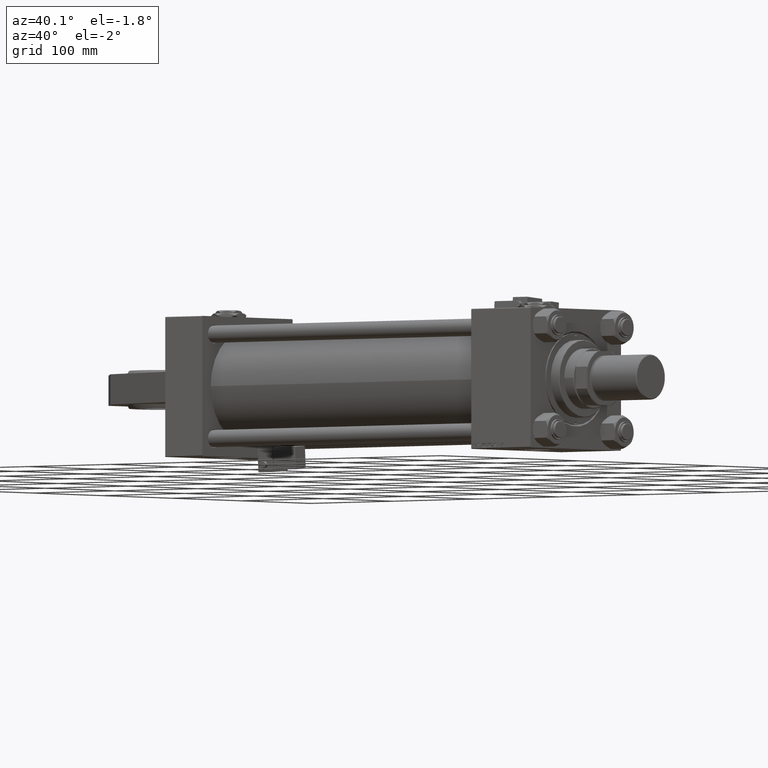
[diagram: clean part render]
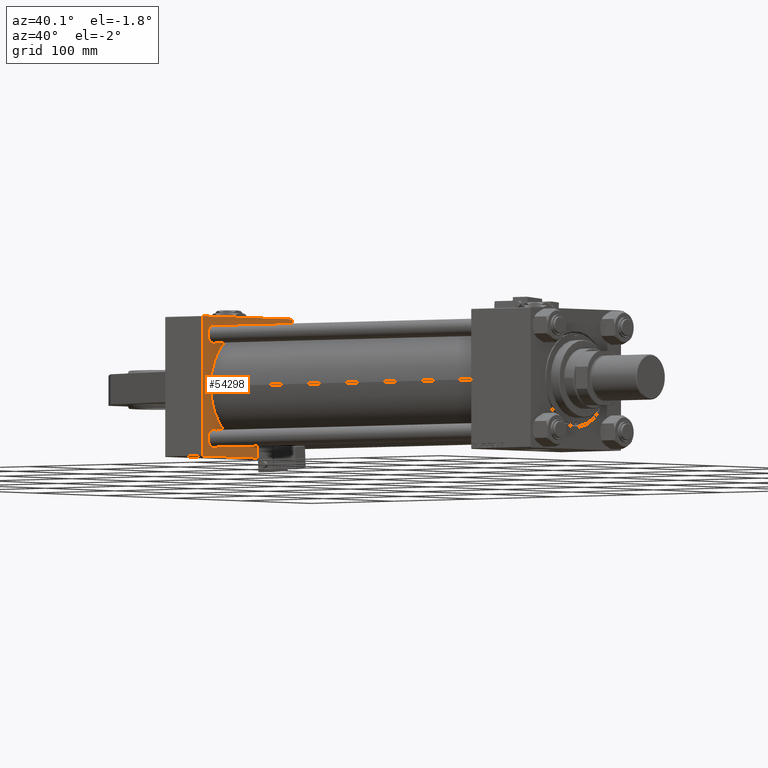
[diagram: same view with one face highlighted and labeled with its STEP entity id]
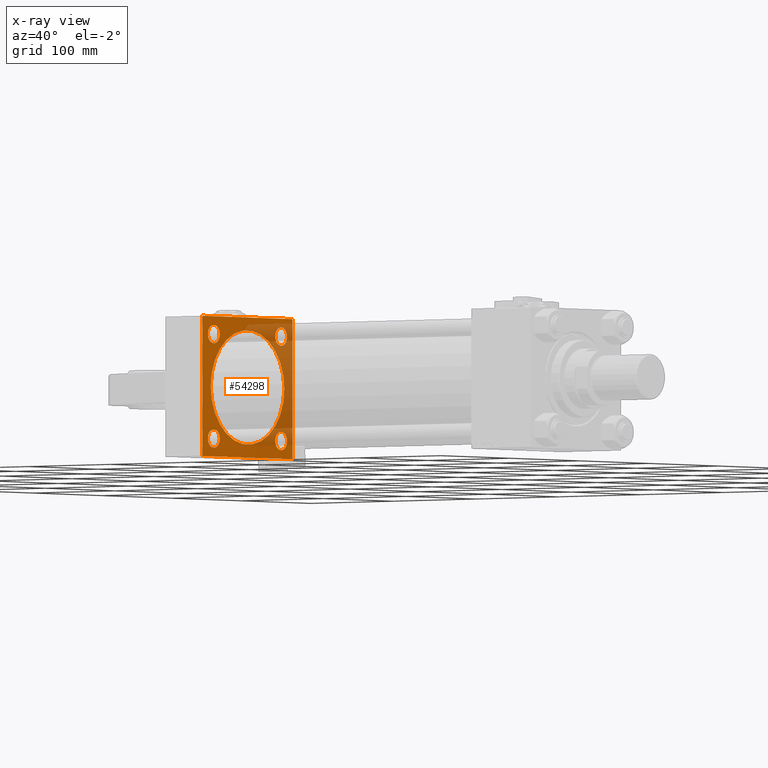
[diagram: x-ray of the same camera — body ghosted, the highlighted face saturated]
A machine part, auxiliary view. The second image highlights one B-rep face of the part: STEP entity #54298.
The next image is the same camera in x-ray: the body ghosted, the highlighted face saturated — about 35% of this face is hidden behind the body in this view.
In plain terms, the highlighted planar face has unit normal (-1, 0, 0).
Its self-contained STEP definition (entity closure, byte-faithful):
#99 = VERTEX_POINT ( 'NONE', #22239 ) ;
#231 = DIRECTION ( 'NONE',  ( 0.000000000000000000, 0.000000000000000000, 1.000000000000000000 ) ) ;
#250 = VERTEX_POINT ( 'NONE', #48802 ) ;
#387 = CARTESIAN_POINT ( 'NONE',  ( 45.00000000000000000, -48.44999999999999574, 48.45000000000003126 ) ) ;
#575 = CARTESIAN_POINT ( 'NONE',  ( 45.00000000000000000, 64.49999999999997158, -64.99999999999998579 ) ) ;
#906 = CARTESIAN_POINT ( 'NONE',  ( 45.00000000000000000, -48.44999999999999574, 48.45000000000003126 ) ) ;
#1478 = LINE ( 'NONE', #18565, #18039 ) ;
#2590 = EDGE_CURVE ( 'NONE', #47584, #99, #52327, .T. ) ;
#3079 = CARTESIAN_POINT ( 'NONE',  ( 45.00000000000000000, 48.45000000000000995, -48.45000000000001705 ) ) ;
#3231 = ORIENTED_EDGE ( 'NONE', *, *, #37773, .T. ) ;
#3272 = DIRECTION ( 'NONE',  ( 0.000000000000000000, 0.000000000000000000, -1.000000000000000000 ) ) ;
#3375 = DIRECTION ( 'NONE',  ( 0.000000000000000000, 0.000000000000000000, 1.000000000000000000 ) ) ;
#3667 = VERTEX_POINT ( 'NONE', #28846 ) ;
#3714 = DIRECTION ( 'NONE',  ( -0.000000000000000000, 0.000000000000000000, 1.000000000000000000 ) ) ;
#4443 = EDGE_CURVE ( 'NONE', #21731, #38256, #54909, .T. ) ;
#4561 = ORIENTED_EDGE ( 'NONE', *, *, #4443, .T. ) ;
#4584 = CIRCLE ( 'NONE', #51061, 53.00000000000000711 ) ;
#4760 = VERTEX_POINT ( 'NONE', #29618 ) ;
#5028 = ORIENTED_EDGE ( 'NONE', *, *, #16307, .T. ) ;
#5095 = VERTEX_POINT ( 'NONE', #25248 ) ;
#5112 = ORIENTED_EDGE ( 'NONE', *, *, #11212, .T. ) ;
#6523 = ORIENTED_EDGE ( 'NONE', *, *, #2590, .F. ) ;
#6583 = VECTOR ( 'NONE', #9778, 1000.000000000000000 ) ;
#6794 = DIRECTION ( 'NONE',  ( 0.000000000000000000, -1.000000000000000000, -1.067522139062650425E-16 ) ) ;
#7582 = CARTESIAN_POINT ( 'NONE',  ( 44.99999999999998579, -2.602085213965210642E-15, 0.000000000000000000 ) ) ;
#7767 = DIRECTION ( 'NONE',  ( -1.000000000000000000, 0.000000000000000000, -0.000000000000000000 ) ) ;
#8153 = DIRECTION ( 'NONE',  ( 0.000000000000000000, 0.000000000000000000, -1.000000000000000000 ) ) ;
#9263 = CARTESIAN_POINT ( 'NONE',  ( 45.00000000000000000, 48.45000000000000995, -39.95000000000003126 ) ) ;
#9660 = AXIS2_PLACEMENT_3D ( 'NONE', #14786, #53129, #39400 ) ;
#9778 = DIRECTION ( 'NONE',  ( 0.000000000000000000, -1.000000000000000000, -1.067522139062650425E-16 ) ) ;
#9793 = AXIS2_PLACEMENT_3D ( 'NONE', #387, #51344, #50513 ) ;
#9977 = CARTESIAN_POINT ( 'NONE',  ( 45.00000000000000000, 48.45000000000000995, 48.45000000000001705 ) ) ;
#10014 = ORIENTED_EDGE ( 'NONE', *, *, #36157, .T. ) ;
#11212 = EDGE_CURVE ( 'NONE', #38256, #99, #39925, .T. ) ;
#11596 = DIRECTION ( 'NONE',  ( -0.000000000000000000, 0.7071067811865474617, 0.7071067811865474617 ) ) ;
#11908 = CIRCLE ( 'NONE', #32406, 8.499999999999980460 ) ;
#12681 = FACE_BOUND ( 'NONE', #48282, .T. ) ;
#12694 = DIRECTION ( 'NONE',  ( -1.000000000000000000, 0.000000000000000000, -0.000000000000000000 ) ) ;
#12912 = EDGE_CURVE ( 'NONE', #3667, #19369, #19492, .T. ) ;
#12954 = FACE_BOUND ( 'NONE', #53306, .T. ) ;
#13331 = ORIENTED_EDGE ( 'NONE', *, *, #46310, .T. ) ;
#13635 = ORIENTED_EDGE ( 'NONE', *, *, #41515, .T. ) ;
#13937 = ORIENTED_EDGE ( 'NONE', *, *, #14120, .T. ) ;
#13982 = CARTESIAN_POINT ( 'NONE',  ( 45.00000000000000000, 65.00000000000000000, -64.99999999999998579 ) ) ;
#14096 = EDGE_LOOP ( 'NONE', ( #22058, #49711 ) ) ;
#14120 = EDGE_CURVE ( 'NONE', #5095, #21657, #52006, .T. ) ;
#14575 = CIRCLE ( 'NONE', #47646, 8.499999999999980460 ) ;
#14786 = CARTESIAN_POINT ( 'NONE',  ( 45.00000000000000000, -48.44999999999999574, -48.45000000000003126 ) ) ;
#15367 = CIRCLE ( 'NONE', #37694, 53.00000000000000711 ) ;
#15588 = CARTESIAN_POINT ( 'NONE',  ( 44.99999999999998579, 3.888542821515762466E-15, -53.00000000000000711 ) ) ;
#15730 = DIRECTION ( 'NONE',  ( 1.000000000000000000, -0.000000000000000000, 0.000000000000000000 ) ) ;
#15772 = VERTEX_POINT ( 'NONE', #47239 ) ;
#16307 = EDGE_CURVE ( 'NONE', #47584, #250, #54141, .T. ) ;
#16320 = FACE_BOUND ( 'NONE', #23985, .T. ) ;
#16575 = EDGE_CURVE ( 'NONE', #40061, #34905, #14575, .T. ) ;
#17284 = VECTOR ( 'NONE', #11596, 1000.000000000000114 ) ;
#17376 = LINE ( 'NONE', #21034, #20926 ) ;
#17702 = AXIS2_PLACEMENT_3D ( 'NONE', #29308, #7767, #21473 ) ;
#17791 = AXIS2_PLACEMENT_3D ( 'NONE', #43319, #47527, #231 ) ;
#18002 = ORIENTED_EDGE ( 'NONE', *, *, #22023, .T. ) ;
#18039 = VECTOR ( 'NONE', #6794, 1000.000000000000000 ) ;
#18098 = DIRECTION ( 'NONE',  ( -1.000000000000000000, 0.000000000000000000, -0.000000000000000000 ) ) ;
#18462 = ORIENTED_EDGE ( 'NONE', *, *, #50598, .T. ) ;
#18565 = CARTESIAN_POINT ( 'NONE',  ( 45.00000000000000000, 65.00000000000000000, 65.00000000000001421 ) ) ;
#19369 = VERTEX_POINT ( 'NONE', #34639 ) ;
#19492 = CIRCLE ( 'NONE', #9660, 8.499999999999980460 ) ;
#20169 = DIRECTION ( 'NONE',  ( -1.000000000000000000, 0.000000000000000000, -0.000000000000000000 ) ) ;
#20259 = VERTEX_POINT ( 'NONE', #40905 ) ;
#20536 = CARTESIAN_POINT ( 'NONE',  ( 45.00000000000000000, 65.00000000000000000, -64.49999999999995737 ) ) ;
#20715 = DIRECTION ( 'NONE',  ( -1.000000000000000000, 0.000000000000000000, -0.000000000000000000 ) ) ;
#20777 = VECTOR ( 'NONE', #3272, 1000.000000000000000 ) ;
#20926 = VECTOR ( 'NONE', #28379, 1000.000000000000000 ) ;
#21034 = CARTESIAN_POINT ( 'NONE',  ( 45.00000000000000000, -65.00000000000000000, 64.50000000000000000 ) ) ;
#21271 = CARTESIAN_POINT ( 'NONE',  ( 45.00000000000000000, 48.45000000000000995, 39.95000000000003126 ) ) ;
#21473 = DIRECTION ( 'NONE',  ( 0.000000000000000000, 0.000000000000000000, 1.000000000000000000 ) ) ;
#21551 = CARTESIAN_POINT ( 'NONE',  ( 45.00000000000000000, 48.45000000000000995, -48.45000000000001705 ) ) ;
#21641 = CARTESIAN_POINT ( 'NONE',  ( 45.00000000000000000, 64.49999999999997158, 65.00000000000001421 ) ) ;
#21657 = VERTEX_POINT ( 'NONE', #21271 ) ;
#21731 = VERTEX_POINT ( 'NONE', #38592 ) ;
#21918 = DIRECTION ( 'NONE',  ( 0.000000000000000000, 0.000000000000000000, 1.000000000000000000 ) ) ;
#22023 = EDGE_CURVE ( 'NONE', #31484, #21731, #17376, .T. ) ;
#22051 = DIRECTION ( 'NONE',  ( 0.000000000000000000, 0.7071067811865279218, -0.7071067811865671127 ) ) ;
#22058 = ORIENTED_EDGE ( 'NONE', *, *, #51569, .F. ) ;
#22239 = CARTESIAN_POINT ( 'NONE',  ( 45.00000000000000000, -64.49999999999994316, -65.00000000000000000 ) ) ;
#22293 = CARTESIAN_POINT ( 'NONE',  ( 45.00000000000000000, -65.00000000000000000, -64.49999999999991473 ) ) ;
#23879 = VECTOR ( 'NONE', #22051, 1000.000000000000000 ) ;
#23985 = EDGE_LOOP ( 'NONE', ( #10014, #13937 ) ) ;
#24031 = ORIENTED_EDGE ( 'NONE', *, *, #52797, .F. ) ;
#24512 = VECTOR ( 'NONE', #8153, 1000.000000000000000 ) ;
#24854 = CIRCLE ( 'NONE', #17702, 8.499999999999980460 ) ;
#24964 = CARTESIAN_POINT ( 'NONE',  ( 44.99999999999998579, -2.602085213965210642E-15, 0.000000000000000000 ) ) ;
#25248 = CARTESIAN_POINT ( 'NONE',  ( 45.00000000000000000, 48.45000000000000995, 56.94999999999999574 ) ) ;
#25561 = FACE_BOUND ( 'NONE', #14096, .T. ) ;
#28379 = DIRECTION ( 'NONE',  ( -0.000000000000000000, -0.7071067811865672237, -0.7071067811865279218 ) ) ;
#28846 = CARTESIAN_POINT ( 'NONE',  ( 45.00000000000000000, -48.44999999999999574, -39.95000000000004547 ) ) ;
#29308 = CARTESIAN_POINT ( 'NONE',  ( 45.00000000000000000, -48.44999999999999574, -48.45000000000003126 ) ) ;
#29436 = DIRECTION ( 'NONE',  ( 0.000000000000000000, 0.000000000000000000, 1.000000000000000000 ) ) ;
#29470 = PLANE ( 'NONE',  #32399 ) ;
#29618 = CARTESIAN_POINT ( 'NONE',  ( 44.99999999999998579, -2.602085213965210642E-15, 53.00000000000000711 ) ) ;
#29660 = AXIS2_PLACEMENT_3D ( 'NONE', #9977, #18098, #52261 ) ;
#29736 = FACE_OUTER_BOUND ( 'NONE', #39636, .T. ) ;
#31484 = VERTEX_POINT ( 'NONE', #53863 ) ;
#32183 = DIRECTION ( 'NONE',  ( 0.000000000000000000, 0.000000000000000000, 1.000000000000000000 ) ) ;
#32399 = AXIS2_PLACEMENT_3D ( 'NONE', #42331, #46814, #3714 ) ;
#32406 = AXIS2_PLACEMENT_3D ( 'NONE', #906, #12694, #21918 ) ;
#32654 = LINE ( 'NONE', #33199, #20777 ) ;
#33199 = CARTESIAN_POINT ( 'NONE',  ( 45.00000000000000000, 65.00000000000000000, 65.00000000000001421 ) ) ;
#33541 = VERTEX_POINT ( 'NONE', #21641 ) ;
#33929 = FACE_BOUND ( 'NONE', #43548, .T. ) ;
#34639 = CARTESIAN_POINT ( 'NONE',  ( 45.00000000000000000, -48.44999999999999574, -56.95000000000000995 ) ) ;
#34905 = VERTEX_POINT ( 'NONE', #9263 ) ;
#35426 = ORIENTED_EDGE ( 'NONE', *, *, #52310, .T. ) ;
#35448 = CARTESIAN_POINT ( 'NONE',  ( 45.00000000000000000, -64.49999999999994316, -65.00000000000000000 ) ) ;
#35625 = ORIENTED_EDGE ( 'NONE', *, *, #40053, .T. ) ;
#36157 = EDGE_CURVE ( 'NONE', #21657, #5095, #50876, .T. ) ;
#36508 = VERTEX_POINT ( 'NONE', #15588 ) ;
#37694 = AXIS2_PLACEMENT_3D ( 'NONE', #24964, #15730, #29436 ) ;
#37773 = EDGE_CURVE ( 'NONE', #54531, #15772, #55406, .T. ) ;
#38256 = VERTEX_POINT ( 'NONE', #22293 ) ;
#38592 = CARTESIAN_POINT ( 'NONE',  ( 45.00000000000000000, -65.00000000000000000, 64.50000000000000000 ) ) ;
#39400 = DIRECTION ( 'NONE',  ( 0.000000000000000000, 0.000000000000000000, 1.000000000000000000 ) ) ;
#39636 = EDGE_LOOP ( 'NONE', ( #6523, #5028, #24031, #13635, #35426, #18002, #4561, #5112 ) ) ;
#39925 = LINE ( 'NONE', #35448, #23879 ) ;
#40053 = EDGE_CURVE ( 'NONE', #19369, #3667, #24854, .T. ) ;
#40061 = VERTEX_POINT ( 'NONE', #41607 ) ;
#40248 = AXIS2_PLACEMENT_3D ( 'NONE', #3079, #20169, #32183 ) ;
#40870 = CARTESIAN_POINT ( 'NONE',  ( 45.00000000000000000, -48.44999999999999574, 39.95000000000004547 ) ) ;
#40905 = CARTESIAN_POINT ( 'NONE',  ( 45.00000000000000000, 65.00000000000000000, 64.49999999999998579 ) ) ;
#41515 = EDGE_CURVE ( 'NONE', #20259, #33541, #49907, .T. ) ;
#41607 = CARTESIAN_POINT ( 'NONE',  ( 45.00000000000000000, 48.45000000000000995, -56.94999999999999574 ) ) ;
#42251 = DIRECTION ( 'NONE',  ( 0.000000000000000000, 0.000000000000000000, 1.000000000000000000 ) ) ;
#42331 = CARTESIAN_POINT ( 'NONE',  ( 45.00000000000000000, 0.000000000000000000, 0.000000000000000000 ) ) ;
#43319 = CARTESIAN_POINT ( 'NONE',  ( 45.00000000000000000, 48.45000000000000995, 48.45000000000001705 ) ) ;
#43548 = EDGE_LOOP ( 'NONE', ( #35625, #54593 ) ) ;
#45630 = DIRECTION ( 'NONE',  ( 1.000000000000000000, -0.000000000000000000, 0.000000000000000000 ) ) ;
#46310 = EDGE_CURVE ( 'NONE', #34905, #40061, #48336, .T. ) ;
#46492 = CARTESIAN_POINT ( 'NONE',  ( 45.00000000000000000, -65.00000000000000000, 65.00000000000000000 ) ) ;
#46814 = DIRECTION ( 'NONE',  ( -1.000000000000000000, 0.000000000000000000, -0.000000000000000000 ) ) ;
#46927 = ORIENTED_EDGE ( 'NONE', *, *, #16575, .T. ) ;
#47219 = EDGE_CURVE ( 'NONE', #36508, #4760, #4584, .T. ) ;
#47239 = CARTESIAN_POINT ( 'NONE',  ( 45.00000000000000000, -48.44999999999999574, 56.95000000000000995 ) ) ;
#47527 = DIRECTION ( 'NONE',  ( -1.000000000000000000, 0.000000000000000000, -0.000000000000000000 ) ) ;
#47584 = VERTEX_POINT ( 'NONE', #575 ) ;
#47646 = AXIS2_PLACEMENT_3D ( 'NONE', #21551, #20715, #42251 ) ;
#48282 = EDGE_LOOP ( 'NONE', ( #46927, #13331 ) ) ;
#48336 = CIRCLE ( 'NONE', #40248, 8.499999999999980460 ) ;
#48802 = CARTESIAN_POINT ( 'NONE',  ( 45.00000000000000000, 65.00000000000000000, -64.49999999999995737 ) ) ;
#49711 = ORIENTED_EDGE ( 'NONE', *, *, #47219, .F. ) ;
#49907 = LINE ( 'NONE', #50172, #49909 ) ;
#49909 = VECTOR ( 'NONE', #55221, 1000.000000000000114 ) ;
#50172 = CARTESIAN_POINT ( 'NONE',  ( 45.00000000000000000, 64.49999999999997158, 65.00000000000001421 ) ) ;
#50513 = DIRECTION ( 'NONE',  ( 0.000000000000000000, 0.000000000000000000, 1.000000000000000000 ) ) ;
#50598 = EDGE_CURVE ( 'NONE', #15772, #54531, #11908, .T. ) ;
#50876 = CIRCLE ( 'NONE', #17791, 8.499999999999980460 ) ;
#51061 = AXIS2_PLACEMENT_3D ( 'NONE', #7582, #45630, #3375 ) ;
#51344 = DIRECTION ( 'NONE',  ( -1.000000000000000000, 0.000000000000000000, -0.000000000000000000 ) ) ;
#51569 = EDGE_CURVE ( 'NONE', #4760, #36508, #15367, .T. ) ;
#52006 = CIRCLE ( 'NONE', #29660, 8.499999999999980460 ) ;
#52261 = DIRECTION ( 'NONE',  ( 0.000000000000000000, 0.000000000000000000, 1.000000000000000000 ) ) ;
#52310 = EDGE_CURVE ( 'NONE', #33541, #31484, #1478, .T. ) ;
#52327 = LINE ( 'NONE', #13982, #6583 ) ;
#52797 = EDGE_CURVE ( 'NONE', #20259, #250, #32654, .T. ) ;
#53129 = DIRECTION ( 'NONE',  ( -1.000000000000000000, 0.000000000000000000, -0.000000000000000000 ) ) ;
#53306 = EDGE_LOOP ( 'NONE', ( #3231, #18462 ) ) ;
#53863 = CARTESIAN_POINT ( 'NONE',  ( 45.00000000000000000, -64.49999999999997158, 65.00000000000000000 ) ) ;
#54141 = LINE ( 'NONE', #20536, #17284 ) ;
#54298 = ADVANCED_FACE ( 'NONE', ( #25561, #16320, #12954, #33929, #12681, #29736 ), #29470, .F. ) ;
#54531 = VERTEX_POINT ( 'NONE', #40870 ) ;
#54593 = ORIENTED_EDGE ( 'NONE', *, *, #12912, .T. ) ;
#54909 = LINE ( 'NONE', #46492, #24512 ) ;
#55221 = DIRECTION ( 'NONE',  ( 0.000000000000000000, -0.7071067811865474617, 0.7071067811865474617 ) ) ;
#55406 = CIRCLE ( 'NONE', #9793, 8.499999999999980460 ) ;